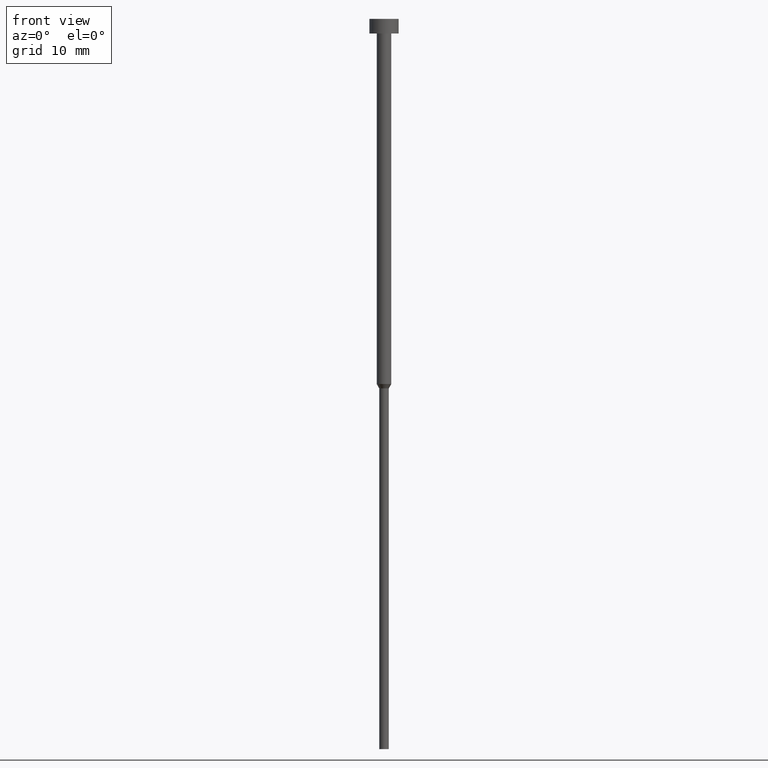
[diagram: clean part render]
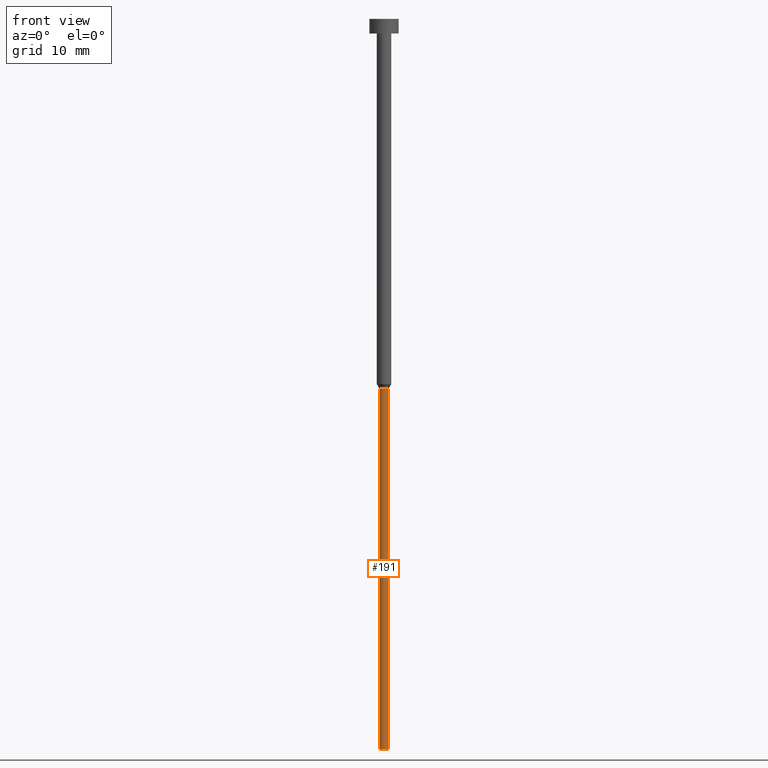
[diagram: same view with one face highlighted and labeled with its STEP entity id]
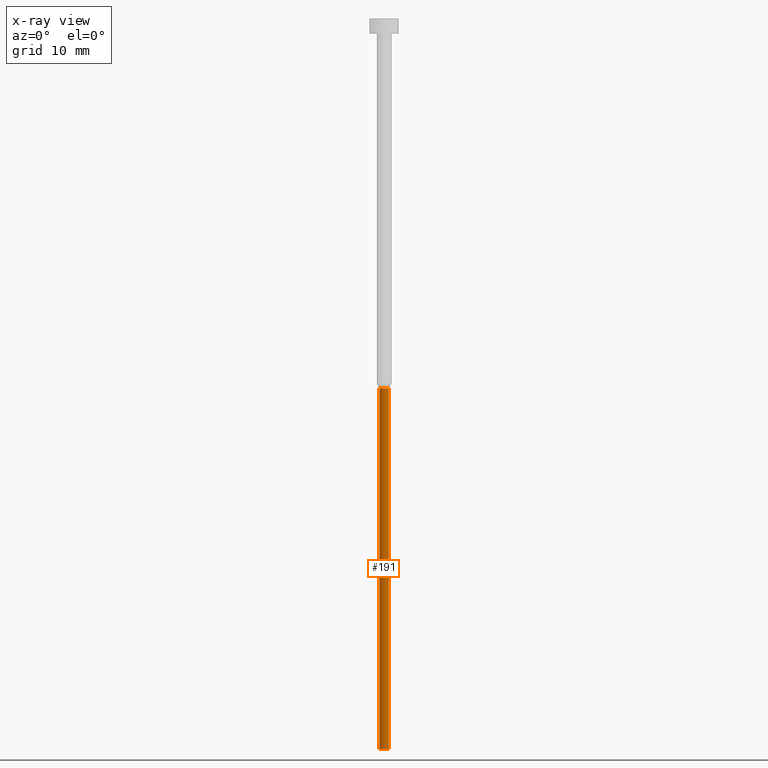
[diagram: x-ray of the same camera — body ghosted, the highlighted face saturated]
A machine part, front view. The second image highlights one B-rep face of the part: STEP entity #191.
The next image is the same camera in x-ray: the body ghosted, the highlighted face saturated — about 0% of this face is hidden behind the body in this view.
In plain terms, the highlighted cylindrical surface (edge-blend (fillet) strip) has radius 0.65 mm, axis along (-0, -0, 1).
Its self-contained STEP definition (entity closure, byte-faithful):
#7 = ORIENTED_EDGE ( 'NONE', *, *, #244, .T. ) ;
#8 = EDGE_CURVE ( 'NONE', #11, #106, #150, .T. ) ;
#11 = VERTEX_POINT ( 'NONE', #62 ) ;
#16 = DIRECTION ( 'NONE',  ( -0.000000000000000000, -0.000000000000000000, 1.000000000000000000 ) ) ;
#50 = VERTEX_POINT ( 'NONE', #91 ) ;
#62 = CARTESIAN_POINT ( 'NONE',  ( -0.6500000000000000222, 7.960204194457795477E-17, -100.0000000000000000 ) ) ;
#67 = CARTESIAN_POINT ( 'NONE',  ( -0.6500000000000000222, 7.960204194457795477E-17, 0.000000000000000000 ) ) ;
#70 = AXIS2_PLACEMENT_3D ( 'NONE', #152, #294, #325 ) ;
#80 = EDGE_LOOP ( 'NONE', ( #173, #115, #7, #261 ) ) ;
#91 = CARTESIAN_POINT ( 'NONE',  ( 0.6500000000000000222, 0.000000000000000000, -100.0000000000000000 ) ) ;
#93 = CARTESIAN_POINT ( 'NONE',  ( 0.000000000000000000, 0.000000000000000000, 0.000000000000000000 ) ) ;
#97 = CARTESIAN_POINT ( 'NONE',  ( -0.6500000000000000222, 7.960204194457795477E-17, -50.60621778264911086 ) ) ;
#102 = LINE ( 'NONE', #354, #288 ) ;
#106 = VERTEX_POINT ( 'NONE', #97 ) ;
#115 = ORIENTED_EDGE ( 'NONE', *, *, #169, .T. ) ;
#123 = FACE_OUTER_BOUND ( 'NONE', #80, .T. ) ;
#126 = CYLINDRICAL_SURFACE ( 'NONE', #213, 0.6500000000000000222 ) ;
#130 = EDGE_CURVE ( 'NONE', #106, #165, #327, .T. ) ;
#144 = CIRCLE ( 'NONE', #149, 0.6500000000000000222 ) ;
#149 = AXIS2_PLACEMENT_3D ( 'NONE', #184, #16, #267 ) ;
#150 = LINE ( 'NONE', #67, #350 ) ;
#152 = CARTESIAN_POINT ( 'NONE',  ( 0.000000000000000000, 0.000000000000000000, -50.60621778264911086 ) ) ;
#155 = CARTESIAN_POINT ( 'NONE',  ( 0.6500000000000000222, 0.000000000000000000, -50.60621778264911086 ) ) ;
#165 = VERTEX_POINT ( 'NONE', #155 ) ;
#169 = EDGE_CURVE ( 'NONE', #11, #50, #144, .T. ) ;
#173 = ORIENTED_EDGE ( 'NONE', *, *, #8, .F. ) ;
#181 = DIRECTION ( 'NONE',  ( 1.000000000000000000, 0.000000000000000000, 0.000000000000000000 ) ) ;
#184 = CARTESIAN_POINT ( 'NONE',  ( 0.000000000000000000, 0.000000000000000000, -100.0000000000000000 ) ) ;
#191 = ADVANCED_FACE ( 'NONE', ( #123 ), #126, .T. ) ;
#213 = AXIS2_PLACEMENT_3D ( 'NONE', #93, #321, #181 ) ;
#229 = DIRECTION ( 'NONE',  ( -0.000000000000000000, -0.000000000000000000, 1.000000000000000000 ) ) ;
#244 = EDGE_CURVE ( 'NONE', #50, #165, #102, .T. ) ;
#261 = ORIENTED_EDGE ( 'NONE', *, *, #130, .F. ) ;
#267 = DIRECTION ( 'NONE',  ( 1.000000000000000000, 0.000000000000000000, 0.000000000000000000 ) ) ;
#288 = VECTOR ( 'NONE', #229, 1000.000000000000000 ) ;
#294 = DIRECTION ( 'NONE',  ( -0.000000000000000000, -0.000000000000000000, 1.000000000000000000 ) ) ;
#315 = DIRECTION ( 'NONE',  ( -0.000000000000000000, -0.000000000000000000, 1.000000000000000000 ) ) ;
#321 = DIRECTION ( 'NONE',  ( -0.000000000000000000, -0.000000000000000000, 1.000000000000000000 ) ) ;
#325 = DIRECTION ( 'NONE',  ( 1.000000000000000000, 0.000000000000000000, 0.000000000000000000 ) ) ;
#327 = CIRCLE ( 'NONE', #70, 0.6500000000000000222 ) ;
#350 = VECTOR ( 'NONE', #315, 1000.000000000000000 ) ;
#354 = CARTESIAN_POINT ( 'NONE',  ( 0.6500000000000000222, 0.000000000000000000, 0.000000000000000000 ) ) ;